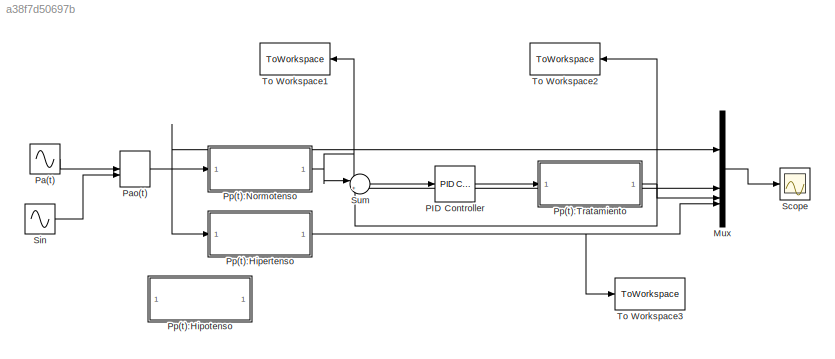
MODEL slx_a38f7d50697b
KIND model
CONFIG AbsTol = auto
CONFIG EnableMultiTasking = off
CONFIG FixedStep = auto
CONFIG MaxStep = 1e-3
CONFIG MinStep = auto
CONFIG RelTol = 1e-3
CONFIG SampleTimeConstraint = Unconstrained
CONFIG SolverName = ode15s
CONFIG StartTime = 0.0
CONFIG StopTime = 15
BLOCK [Mux] Mux
  DisplayOption = bar
BLOCK [Reference] PID Controller  REF=slpidlib/PID Controller
  LibrarySourceBlock = simulink/Continuous/PID Controller
  SourceBlock = slpidlib/PID Controller
  SourceType = PID 1dof
BLOCK [Sin] Pa(t)
  Bias = 0.8
  Frequency = (2*pi)*(95/60)
BLOCK [ManualSwitch] Pao(t)
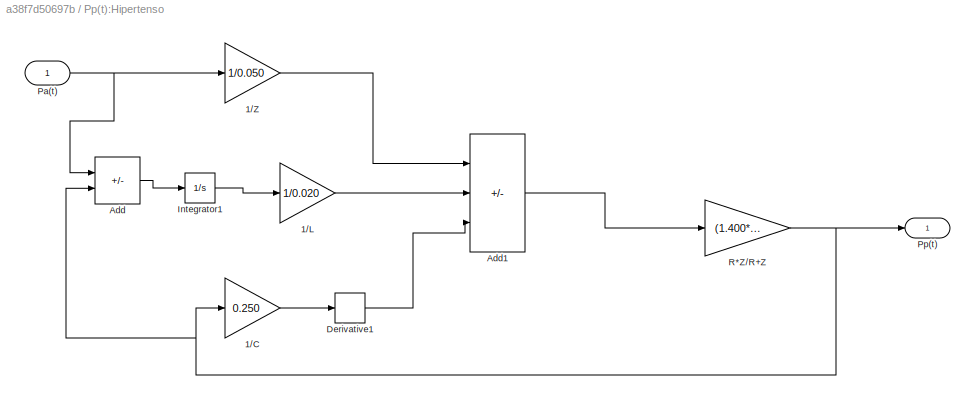
BLOCK [SubSystem] Pp(t):Hipertenso
BLOCK [Gain] Pp(t):Hipertenso/1//C
  Gain = 0.250
BLOCK [Gain] Pp(t):Hipertenso/1//L
  Gain = 1/0.020
BLOCK [Gain] Pp(t):Hipertenso/1//Z
  Gain = 1/0.050
BLOCK [Sum] Pp(t):Hipertenso/Add
  IconShape = rectangular
  Inputs = +-
BLOCK [Sum] Pp(t):Hipertenso/Add1
  IconShape = rectangular
  Inputs = ++-
BLOCK [Derivative] Pp(t):Hipertenso/Derivative1
BLOCK [Integrator] Pp(t):Hipertenso/Integrator1
BLOCK [Inport] Pp(t):Hipertenso/Pa(t)
BLOCK [Outport] Pp(t):Hipertenso/Pp(t)
BLOCK [Gain] Pp(t):Hipertenso/R*Z//R+Z
  Gain = (1.400*0.050)/(1.400+0.050)
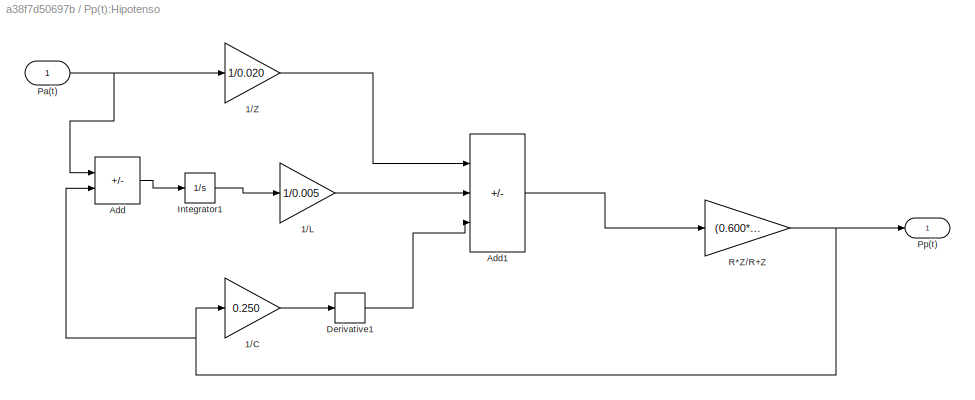
BLOCK [SubSystem] Pp(t):Hipotenso
BLOCK [Gain] Pp(t):Hipotenso/1//C
  Gain = 0.250
BLOCK [Gain] Pp(t):Hipotenso/1//L
  Gain = 1/0.005
BLOCK [Gain] Pp(t):Hipotenso/1//Z
  Gain = 1/0.020
BLOCK [Sum] Pp(t):Hipotenso/Add
  IconShape = rectangular
  Inputs = +-
BLOCK [Sum] Pp(t):Hipotenso/Add1
  IconShape = rectangular
  Inputs = ++-
BLOCK [Derivative] Pp(t):Hipotenso/Derivative1
BLOCK [Integrator] Pp(t):Hipotenso/Integrator1
BLOCK [Inport] Pp(t):Hipotenso/Pa(t)
BLOCK [Outport] Pp(t):Hipotenso/Pp(t)
BLOCK [Gain] Pp(t):Hipotenso/R*Z//R+Z
  Gain = (0.600*0.020)/(0.600+0.020)
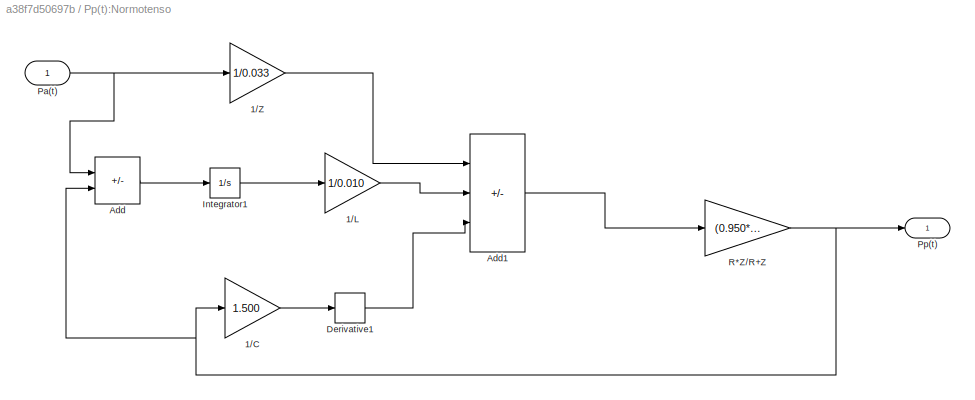
BLOCK [SubSystem] Pp(t):Normotenso
BLOCK [Gain] Pp(t):Normotenso/1//C
  Gain = 1.500
BLOCK [Gain] Pp(t):Normotenso/1//L
  Gain = 1/0.010
BLOCK [Gain] Pp(t):Normotenso/1//Z
  Gain = 1/0.033
BLOCK [Sum] Pp(t):Normotenso/Add
  IconShape = rectangular
  Inputs = +-
BLOCK [Sum] Pp(t):Normotenso/Add1
  IconShape = rectangular
  Inputs = ++-
BLOCK [Derivative] Pp(t):Normotenso/Derivative1
BLOCK [Integrator] Pp(t):Normotenso/Integrator1
BLOCK [Inport] Pp(t):Normotenso/Pa(t)
BLOCK [Outport] Pp(t):Normotenso/Pp(t)
BLOCK [Gain] Pp(t):Normotenso/R*Z//R+Z
  Gain = (0.950*0.033)/(0.950+0.033)
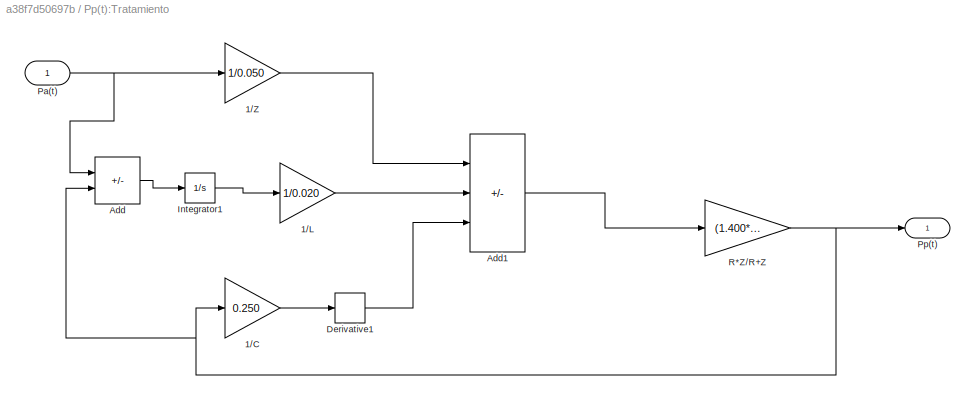
BLOCK [SubSystem] Pp(t):Tratamiento
BLOCK [Gain] Pp(t):Tratamiento/1//C
  Gain = 0.250
BLOCK [Gain] Pp(t):Tratamiento/1//L
  Gain = 1/0.020
BLOCK [Gain] Pp(t):Tratamiento/1//Z
  Gain = 1/0.050
BLOCK [Sum] Pp(t):Tratamiento/Add
  IconShape = rectangular
  Inputs = +-
BLOCK [Sum] Pp(t):Tratamiento/Add1
  IconShape = rectangular
  Inputs = ++-
BLOCK [Derivative] Pp(t):Tratamiento/Derivative1
BLOCK [Integrator] Pp(t):Tratamiento/Integrator1
BLOCK [Inport] Pp(t):Tratamiento/Pa(t)
BLOCK [Outport] Pp(t):Tratamiento/Pp(t)
BLOCK [Gain] Pp(t):Tratamiento/R*Z//R+Z
  Gain = (1.400*0.050)/(1.400+0.050)
BLOCK [Scope] Scope
  Floating = off
  NumInputPorts = 1
  ScopeSpecificationString = Simulink.scopes.TimeScopeBlockCfg('CurrentConfiguration', extmgr.ConfigurationSet(extmgr.Configuration('Core','General UI',true),extmgr.Configuration('Core','Source UI',true),extmgr.Configuration('Sources','WiredSimulink',true),extmgr.Configuration('Visuals','Time Domain',true,'SerializedDisplays',{struct('MinYLimReal','-0.47506','MaxYLimReal','2.05974','YLabelReal','','MinYLimMag','0.00000','MaxY...<+1785ch>
BLOCK [Sin] Sin
  Amplitude = 1.5
  Frequency = pi/2
  SampleTime = 0
BLOCK [Sum] Sum
  Inputs = |+-
BLOCK [ToWorkspace] To Workspace1
  FixptAsFi = on
  MaxDataPoints = inf
  SampleTime = -1
  VariableName = Ppy
BLOCK [ToWorkspace] To Workspace2
  FixptAsFi = on
  MaxDataPoints = inf
  SampleTime = -1
  VariableName = Ppz
BLOCK [ToWorkspace] To Workspace3
  FixptAsFi = on
  MaxDataPoints = inf
  SampleTime = -1
  VariableName = Ppx
LINE Mux:1 -> Scope:1
LINE PID Controller:1 -> Pp(t):Tratamiento:1
LINE Pa(t):1 -> Pao(t):1
NET Pao(t):1 -> Mux:1, Pp(t):Hipertenso:1, Pp(t):Normotenso:1
LINE Pp(t):Hipertenso/1//C:1 -> Pp(t):Hipertenso/Derivative1:1
LINE Pp(t):Hipertenso/1//L:1 -> Pp(t):Hipertenso/Add1:2
LINE Pp(t):Hipertenso/1//Z:1 -> Pp(t):Hipertenso/Add1:1
LINE Pp(t):Hipertenso/Add1:1 -> Pp(t):Hipertenso/R*Z//R+Z:1
LINE Pp(t):Hipertenso/Add:1 -> Pp(t):Hipertenso/Integrator1:1
LINE Pp(t):Hipertenso/Derivative1:1 -> Pp(t):Hipertenso/Add1:3
LINE Pp(t):Hipertenso/Integrator1:1 -> Pp(t):Hipertenso/1//L:1
NET Pp(t):Hipertenso/Pa(t):1 -> Pp(t):Hipertenso/1//Z:1, Pp(t):Hipertenso/Add:1
NET Pp(t):Hipertenso/R*Z//R+Z:1 -> Pp(t):Hipertenso/1//C:1, Pp(t):Hipertenso/Add:2, Pp(t):Hipertenso/Pp(t):1
NET Pp(t):Hipertenso:1 -> Mux:4, To Workspace3:1
LINE Pp(t):Hipotenso/1//C:1 -> Pp(t):Hipotenso/Derivative1:1
LINE Pp(t):Hipotenso/1//L:1 -> Pp(t):Hipotenso/Add1:2
LINE Pp(t):Hipotenso/1//Z:1 -> Pp(t):Hipotenso/Add1:1
LINE Pp(t):Hipotenso/Add1:1 -> Pp(t):Hipotenso/R*Z//R+Z:1
LINE Pp(t):Hipotenso/Add:1 -> Pp(t):Hipotenso/Integrator1:1
LINE Pp(t):Hipotenso/Derivative1:1 -> Pp(t):Hipotenso/Add1:3
LINE Pp(t):Hipotenso/Integrator1:1 -> Pp(t):Hipotenso/1//L:1
NET Pp(t):Hipotenso/Pa(t):1 -> Pp(t):Hipotenso/1//Z:1, Pp(t):Hipotenso/Add:1
NET Pp(t):Hipotenso/R*Z//R+Z:1 -> Pp(t):Hipotenso/1//C:1, Pp(t):Hipotenso/Add:2, Pp(t):Hipotenso/Pp(t):1
LINE Pp(t):Normotenso/1//C:1 -> Pp(t):Normotenso/Derivative1:1
LINE Pp(t):Normotenso/1//L:1 -> Pp(t):Normotenso/Add1:2
LINE Pp(t):Normotenso/1//Z:1 -> Pp(t):Normotenso/Add1:1
LINE Pp(t):Normotenso/Add1:1 -> Pp(t):Normotenso/R*Z//R+Z:1
LINE Pp(t):Normotenso/Add:1 -> Pp(t):Normotenso/Integrator1:1
LINE Pp(t):Normotenso/Derivative1:1 -> Pp(t):Normotenso/Add1:3
LINE Pp(t):Normotenso/Integrator1:1 -> Pp(t):Normotenso/1//L:1
NET Pp(t):Normotenso/Pa(t):1 -> Pp(t):Normotenso/1//Z:1, Pp(t):Normotenso/Add:1
NET Pp(t):Normotenso/R*Z//R+Z:1 -> Pp(t):Normotenso/1//C:1, Pp(t):Normotenso/Add:2, Pp(t):Normotenso/Pp(t):1
NET Pp(t):Normotenso:1 -> Mux:2, Sum:1, To Workspace1:1
LINE Pp(t):Tratamiento/1//C:1 -> Pp(t):Tratamiento/Derivative1:1
LINE Pp(t):Tratamiento/1//L:1 -> Pp(t):Tratamiento/Add1:2
LINE Pp(t):Tratamiento/1//Z:1 -> Pp(t):Tratamiento/Add1:1
LINE Pp(t):Tratamiento/Add1:1 -> Pp(t):Tratamiento/R*Z//R+Z:1
LINE Pp(t):Tratamiento/Add:1 -> Pp(t):Tratamiento/Integrator1:1
LINE Pp(t):Tratamiento/Derivative1:1 -> Pp(t):Tratamiento/Add1:3
LINE Pp(t):Tratamiento/Integrator1:1 -> Pp(t):Tratamiento/1//L:1
NET Pp(t):Tratamiento/Pa(t):1 -> Pp(t):Tratamiento/1//Z:1, Pp(t):Tratamiento/Add:1
NET Pp(t):Tratamiento/R*Z//R+Z:1 -> Pp(t):Tratamiento/1//C:1, Pp(t):Tratamiento/Add:2, Pp(t):Tratamiento/Pp(t):1
NET Pp(t):Tratamiento:1 -> Mux:3, Sum:2, To Workspace2:1
LINE Sin:1 -> Pao(t):2
LINE Sum:1 -> PID Controller:1
note: NET lines group one-source signal fan-out (src -> all destinations, sorted); 1:1 wires keep LINE
